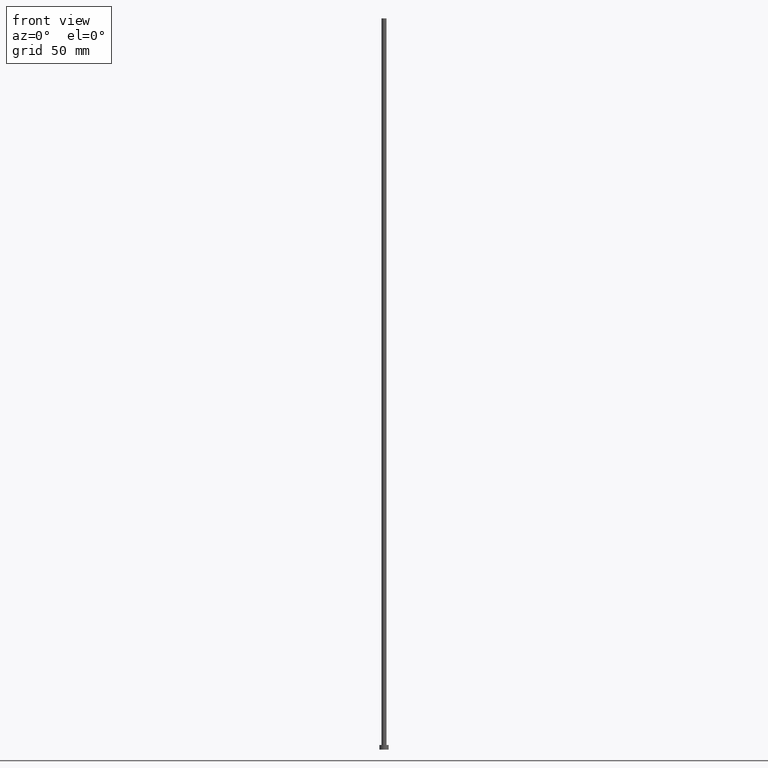
[diagram: clean part render]
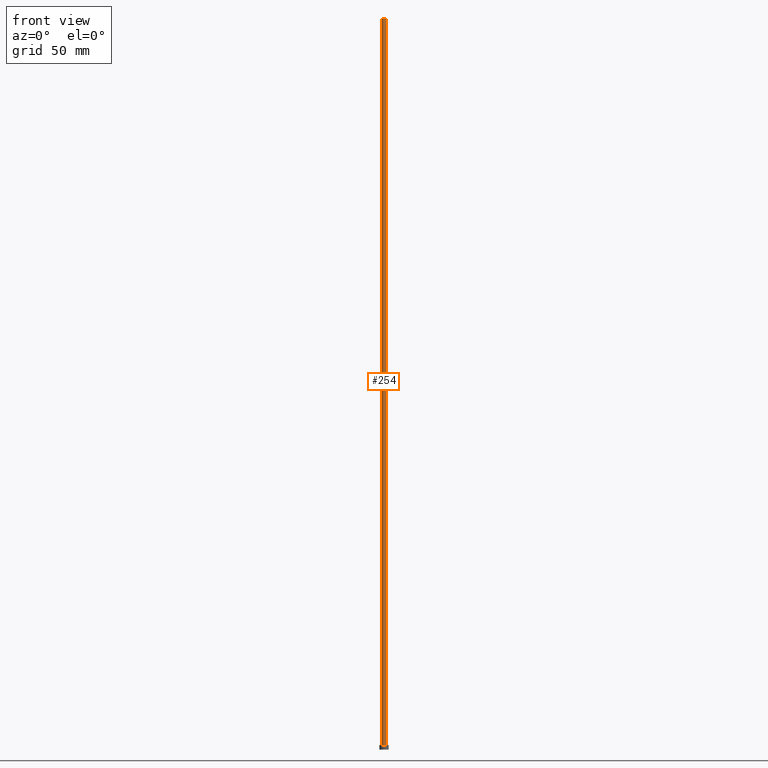
[diagram: same view with one face highlighted and labeled with its STEP entity id]
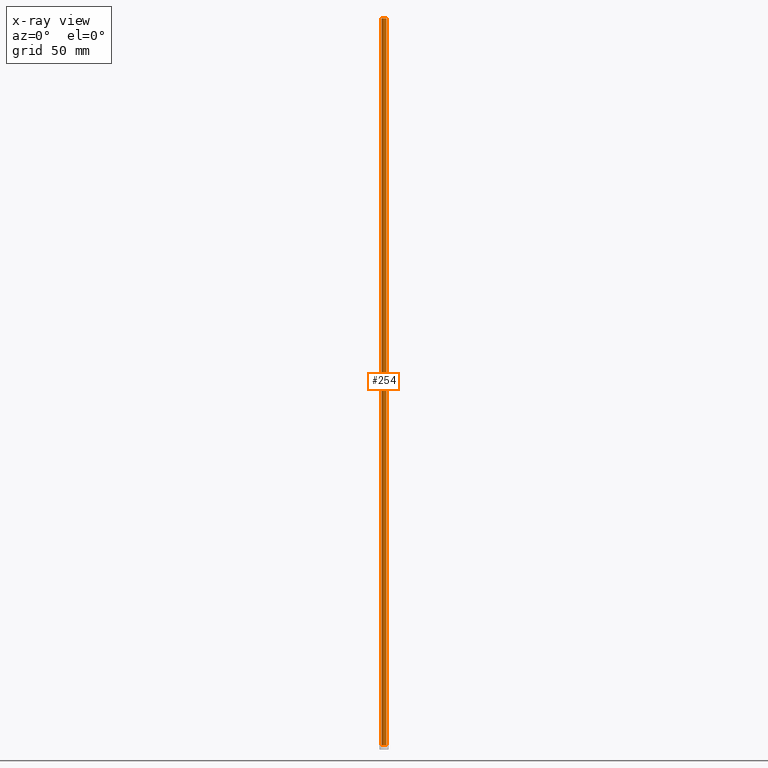
[diagram: x-ray of the same camera — body ghosted, the highlighted face saturated]
A machine part, front view. The second image highlights one B-rep face of the part: STEP entity #254.
The next image is the same camera in x-ray: the body ghosted, the highlighted face saturated — about 0% of this face is hidden behind the body in this view.
In plain terms, the highlighted cylindrical surface (edge-blend (fillet) strip) has radius 1.1 mm, axis along (-0, -0, -1).
Its self-contained STEP definition (entity closure, byte-faithful):
#3 = CARTESIAN_POINT ( 'NONE',  ( -1.100000000000000089, 0.000000000000000000, 2.000000000000000000 ) ) ;
#6 = DIRECTION ( 'NONE',  ( 1.000000000000000000, 0.000000000000000000, 0.000000000000000000 ) ) ;
#22 = CYLINDRICAL_SURFACE ( 'NONE', #189, 1.100000000000000089 ) ;
#36 = ORIENTED_EDGE ( 'NONE', *, *, #91, .T. ) ;
#37 = EDGE_CURVE ( 'NONE', #38, #253, #105, .T. ) ;
#38 = VERTEX_POINT ( 'NONE', #180 ) ;
#44 = FACE_OUTER_BOUND ( 'NONE', #100, .T. ) ;
#52 = DIRECTION ( 'NONE',  ( -0.000000000000000000, -0.000000000000000000, -1.000000000000000000 ) ) ;
#54 = AXIS2_PLACEMENT_3D ( 'NONE', #82, #159, #155 ) ;
#67 = CARTESIAN_POINT ( 'NONE',  ( -1.100000000000000089, 0.000000000000000000, 315.0000000000000000 ) ) ;
#74 = CIRCLE ( 'NONE', #54, 1.100000000000000089 ) ;
#82 = CARTESIAN_POINT ( 'NONE',  ( 0.000000000000000000, 0.000000000000000000, 2.000000000000000000 ) ) ;
#91 = EDGE_CURVE ( 'NONE', #133, #253, #74, .T. ) ;
#92 = DIRECTION ( 'NONE',  ( -1.000000000000000000, 0.000000000000000000, 0.000000000000000000 ) ) ;
#99 = ORIENTED_EDGE ( 'NONE', *, *, #174, .T. ) ;
#100 = EDGE_LOOP ( 'NONE', ( #255, #249, #99, #36 ) ) ;
#103 = DIRECTION ( 'NONE',  ( -0.000000000000000000, -0.000000000000000000, -1.000000000000000000 ) ) ;
#104 = CARTESIAN_POINT ( 'NONE',  ( 0.000000000000000000, 0.000000000000000000, 315.0000000000000000 ) ) ;
#105 = LINE ( 'NONE', #242, #161 ) ;
#122 = EDGE_CURVE ( 'NONE', #216, #38, #153, .T. ) ;
#133 = VERTEX_POINT ( 'NONE', #3 ) ;
#139 = DIRECTION ( 'NONE',  ( -0.000000000000000000, -0.000000000000000000, -1.000000000000000000 ) ) ;
#153 = CIRCLE ( 'NONE', #247, 1.100000000000000089 ) ;
#155 = DIRECTION ( 'NONE',  ( 1.000000000000000000, 0.000000000000000000, 0.000000000000000000 ) ) ;
#159 = DIRECTION ( 'NONE',  ( 0.000000000000000000, 0.000000000000000000, 1.000000000000000000 ) ) ;
#160 = CARTESIAN_POINT ( 'NONE',  ( -1.100000000000000089, 0.000000000000000000, 315.0000000000000000 ) ) ;
#161 = VECTOR ( 'NONE', #103, 1000.000000000000000 ) ;
#162 = CARTESIAN_POINT ( 'NONE',  ( 0.000000000000000000, 0.000000000000000000, 315.0000000000000000 ) ) ;
#174 = EDGE_CURVE ( 'NONE', #216, #133, #202, .T. ) ;
#180 = CARTESIAN_POINT ( 'NONE',  ( 1.100000000000000089, 1.347111479062088503E-16, 315.0000000000000000 ) ) ;
#181 = DIRECTION ( 'NONE',  ( 0.000000000000000000, 0.000000000000000000, 1.000000000000000000 ) ) ;
#189 = AXIS2_PLACEMENT_3D ( 'NONE', #162, #52, #92 ) ;
#202 = LINE ( 'NONE', #67, #203 ) ;
#203 = VECTOR ( 'NONE', #139, 1000.000000000000000 ) ;
#216 = VERTEX_POINT ( 'NONE', #160 ) ;
#221 = CARTESIAN_POINT ( 'NONE',  ( 1.100000000000000089, 1.347111479062088503E-16, 2.000000000000000000 ) ) ;
#242 = CARTESIAN_POINT ( 'NONE',  ( 1.100000000000000089, 1.347111479062088503E-16, 315.0000000000000000 ) ) ;
#247 = AXIS2_PLACEMENT_3D ( 'NONE', #104, #181, #6 ) ;
#249 = ORIENTED_EDGE ( 'NONE', *, *, #122, .F. ) ;
#253 = VERTEX_POINT ( 'NONE', #221 ) ;
#254 = ADVANCED_FACE ( 'NONE', ( #44 ), #22, .T. ) ;
#255 = ORIENTED_EDGE ( 'NONE', *, *, #37, .F. ) ;